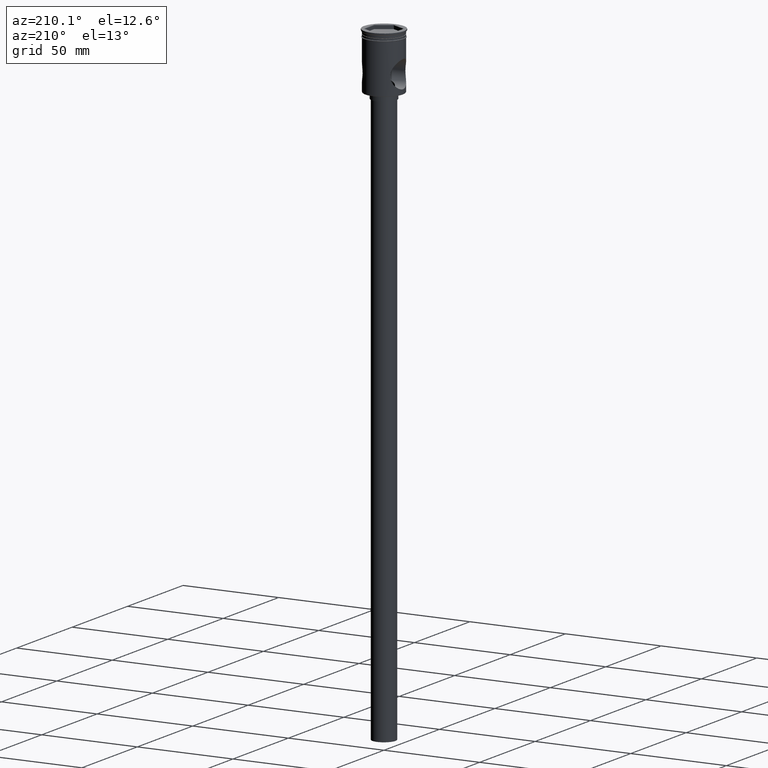
[diagram: clean part render]
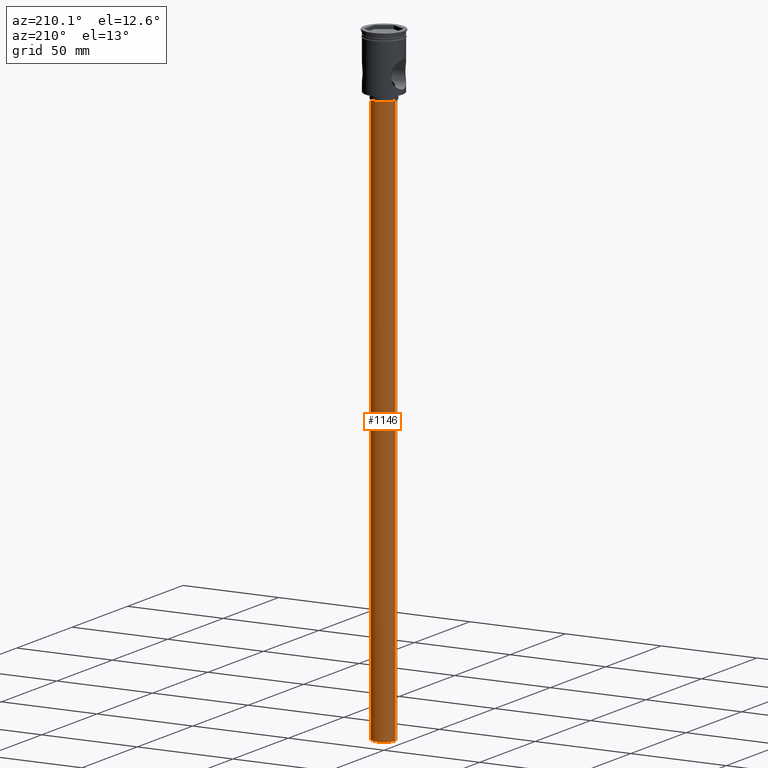
[diagram: same view with one face highlighted and labeled with its STEP entity id]
A machine part, auxiliary view. The second image highlights one B-rep face of the part: STEP entity #1146.
In plain terms, the highlighted cylindrical surface (edge-blend (fillet) strip) has radius 6 mm, axis along (-0, -0, 1).
Its self-contained STEP definition (entity closure, byte-faithful):
#11 = CARTESIAN_POINT ( 'NONE',  ( 0.000000000000000000, 0.000000000000000000, -329.5000000000000000 ) ) ;
#60 = DIRECTION ( 'NONE',  ( 0.000000000000000000, 0.000000000000000000, -1.000000000000000000 ) ) ;
#67 = ORIENTED_EDGE ( 'NONE', *, *, #1139, .F. ) ;
#114 = VERTEX_POINT ( 'NONE', #862 ) ;
#152 = AXIS2_PLACEMENT_3D ( 'NONE', #670, #915, #809 ) ;
#200 = CARTESIAN_POINT ( 'NONE',  ( -6.000000000000000888, 7.347880794884120722E-16, -329.5000000000000000 ) ) ;
#234 = LINE ( 'NONE', #703, #1502 ) ;
#240 = EDGE_CURVE ( 'NONE', #114, #879, #1080, .T. ) ;
#244 = CARTESIAN_POINT ( 'NONE',  ( 6.000000000000000888, 0.000000000000000000, -32.50000000000000000 ) ) ;
#278 = VERTEX_POINT ( 'NONE', #544 ) ;
#427 = DIRECTION ( 'NONE',  ( -0.000000000000000000, -0.000000000000000000, 1.000000000000000000 ) ) ;
#437 = ORIENTED_EDGE ( 'NONE', *, *, #1096, .F. ) ;
#472 = VERTEX_POINT ( 'NONE', #200 ) ;
#526 = DIRECTION ( 'NONE',  ( -1.000000000000000000, 0.000000000000000000, 0.000000000000000000 ) ) ;
#544 = CARTESIAN_POINT ( 'NONE',  ( 6.000000000000000888, 0.000000000000000000, -329.5000000000000000 ) ) ;
#670 = CARTESIAN_POINT ( 'NONE',  ( 0.000000000000000000, 0.000000000000000000, -329.5000000000000000 ) ) ;
#682 = VECTOR ( 'NONE', #1314, 1000.000000000000000 ) ;
#703 = CARTESIAN_POINT ( 'NONE',  ( 6.000000000000000888, 0.000000000000000000, -329.5000000000000000 ) ) ;
#809 = DIRECTION ( 'NONE',  ( -1.000000000000000000, 0.000000000000000000, 0.000000000000000000 ) ) ;
#838 = CYLINDRICAL_SURFACE ( 'NONE', #856, 6.000000000000000888 ) ;
#856 = AXIS2_PLACEMENT_3D ( 'NONE', #11, #1070, #1207 ) ;
#862 = CARTESIAN_POINT ( 'NONE',  ( -6.000000000000000888, 7.347880794884120722E-16, -32.50000000000000000 ) ) ;
#879 = VERTEX_POINT ( 'NONE', #244 ) ;
#894 = FACE_OUTER_BOUND ( 'NONE', #1392, .T. ) ;
#915 = DIRECTION ( 'NONE',  ( 0.000000000000000000, 0.000000000000000000, -1.000000000000000000 ) ) ;
#1063 = CARTESIAN_POINT ( 'NONE',  ( -6.000000000000000888, 7.347880794884120722E-16, -329.5000000000000000 ) ) ;
#1070 = DIRECTION ( 'NONE',  ( -0.000000000000000000, -0.000000000000000000, 1.000000000000000000 ) ) ;
#1080 = CIRCLE ( 'NONE', #1497, 6.000000000000000888 ) ;
#1096 = EDGE_CURVE ( 'NONE', #472, #278, #1154, .T. ) ;
#1139 = EDGE_CURVE ( 'NONE', #278, #879, #234, .T. ) ;
#1146 = ADVANCED_FACE ( 'NONE', ( #894 ), #838, .T. ) ;
#1154 = CIRCLE ( 'NONE', #152, 6.000000000000000888 ) ;
#1184 = ORIENTED_EDGE ( 'NONE', *, *, #1229, .T. ) ;
#1207 = DIRECTION ( 'NONE',  ( 1.000000000000000000, 0.000000000000000000, 0.000000000000000000 ) ) ;
#1224 = CARTESIAN_POINT ( 'NONE',  ( 0.000000000000000000, 0.000000000000000000, -32.50000000000000000 ) ) ;
#1229 = EDGE_CURVE ( 'NONE', #472, #114, #1297, .T. ) ;
#1269 = ORIENTED_EDGE ( 'NONE', *, *, #240, .T. ) ;
#1297 = LINE ( 'NONE', #1063, #682 ) ;
#1314 = DIRECTION ( 'NONE',  ( -0.000000000000000000, -0.000000000000000000, 1.000000000000000000 ) ) ;
#1392 = EDGE_LOOP ( 'NONE', ( #437, #1184, #1269, #67 ) ) ;
#1497 = AXIS2_PLACEMENT_3D ( 'NONE', #1224, #60, #526 ) ;
#1502 = VECTOR ( 'NONE', #427, 1000.000000000000000 ) ;